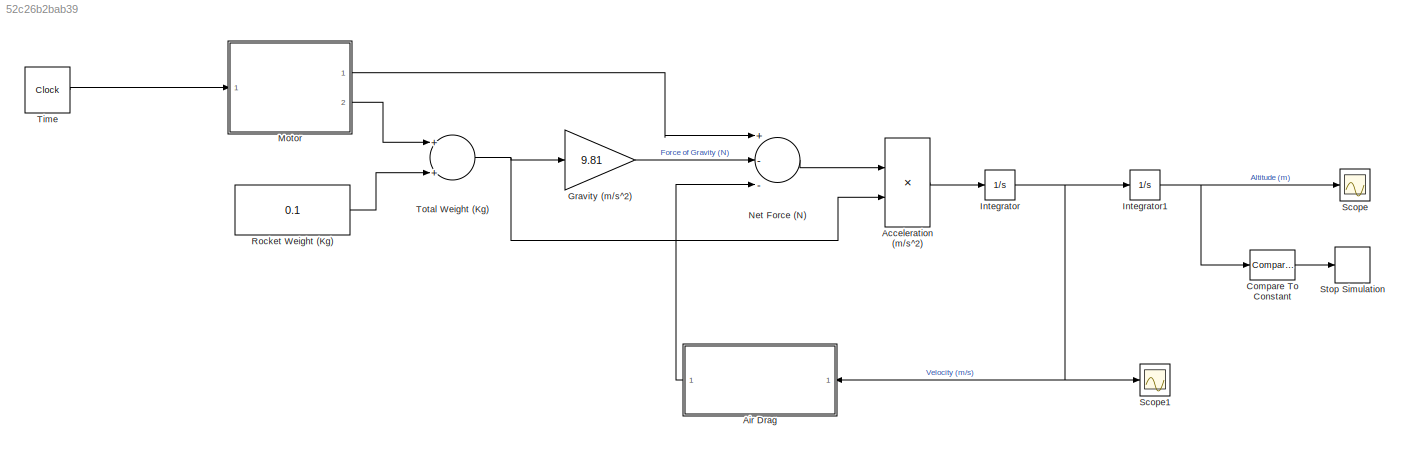
MODEL slx_52c26b2bab39
KIND model
CONFIG AbsTol = auto
CONFIG EnableMultiTasking = off
CONFIG FixedStep = auto
CONFIG MaxStep = auto
CONFIG MinStep = auto
CONFIG RelTol = 1e-3
CONFIG SampleTimeConstraint = Unconstrained
CONFIG Solver = VariableStepAuto
CONFIG SolverName = VariableStepAuto
CONFIG StartTime = 0.0
CONFIG StopTime = 20
BLOCK [Product] Acceleration (m//s^2)
  InputSameDT = off
  Inputs = */
  OutDataTypeStr = Inherit: Inherit via internal rule
  Ports = [2, 1]
  RndMeth = Floor
  SaturateOnIntegerOverflow = off
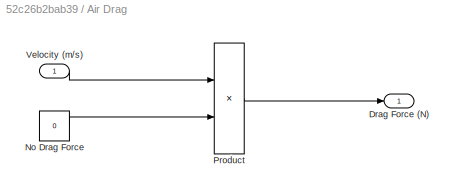
BLOCK [SubSystem] Air Drag
  Ports = [1, 1]
  RequestExecContextInheritance = off
  Variant = off
BLOCK [Outport] Air Drag/Drag Force (N)
  IconDisplay = Port number
BLOCK [Constant] Air Drag/No Drag Force
  Value = 0
BLOCK [Product] Air Drag/Product
  InputSameDT = off
  OutDataTypeStr = Inherit: Inherit via internal rule
  Ports = [2, 1]
  RndMeth = Floor
  SaturateOnIntegerOverflow = off
BLOCK [Inport] Air Drag/Velocity (m//s)
  IconDisplay = Port number
BLOCK [Reference] Compare To Constant  REF=simulink/Logic and Bit
Operations/Compare
To Constant
  Ports = [1, 1]
  SourceBlock = simulink/Logic and Bit\nOperations/Compare\nTo Constant
  SourceProductBaseCode = SL
  SourceProductName = Simulink
  SourceType = Compare To Constant
BLOCK [Gain] Gravity (m//s^2)
  Gain = 9.81
  OutDataTypeStr = Inherit: Inherit via internal rule
  ParamDataTypeStr = Inherit: Inherit via internal rule
  SaturateOnIntegerOverflow = off
BLOCK [Integrator] Integrator
  Ports = [1, 1]
BLOCK [Integrator] Integrator1
  Ports = [1, 1]
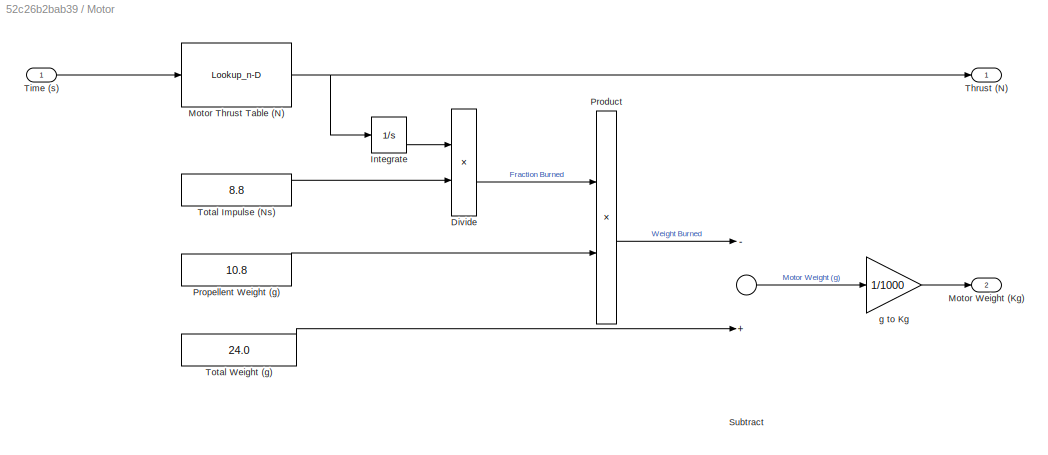
BLOCK [SubSystem] Motor
  Ports = [1, 2]
  RequestExecContextInheritance = off
  Variant = off
BLOCK [Product] Motor/Divide
  InputSameDT = off
  Inputs = */
  OutDataTypeStr = Inherit: Inherit via internal rule
  Ports = [2, 1]
  RndMeth = Floor
  SaturateOnIntegerOverflow = off
BLOCK [Integrator] Motor/Integrate
  Ports = [1, 1]
BLOCK [Lookup_n-D] Motor/Motor Thrust Table (N)
  BreakpointsForDimension1 = [0.0,0.031,0.092,0.139,0.192,0.209,0.231,0.248,0.292,0.37,0.475,0.671,0.702,0.723,0.85,1.063,1.211,1.242,1.303,1.468,1.656,1.821,1.834,1.847,1.86,1.87]
  InternalRulePriority = Speed
  NumberOfTableDimensions = 1
  Ports = [1, 1]
  RndMeth = Simplest
  Table = [0.0,0.946,4.826,9.936,14.09,11.446,7.381,6.151,5.489,4.921,4.448,4.258,4.542,4.164,4.448,4.353,4.353,4.069,4.258,4.353,4.448,4.448,2.933,1.325,0.0,0.0]
BLOCK [Outport] Motor/Motor Weight (Kg)
  IconDisplay = Port number
  Port = 2
BLOCK [Product] Motor/Product
  InputSameDT = off
  OutDataTypeStr = Inherit: Inherit via internal rule
  Ports = [2, 1]
  RndMeth = Floor
  SaturateOnIntegerOverflow = off
BLOCK [Constant] Motor/Propellent Weight (g)
  Value = 10.8
BLOCK [Sum] Motor/Subtract
  InputSameDT = off
  Inputs = -+
  OutDataTypeStr = Inherit: Inherit via internal rule
  Ports = [2, 1]
  SaturateOnIntegerOverflow = off
BLOCK [Outport] Motor/Thrust (N)
  IconDisplay = Port number
BLOCK [Inport] Motor/Time (s)
  IconDisplay = Port number
BLOCK [Constant] Motor/Total Impulse (Ns)
  Value = 8.8
BLOCK [Constant] Motor/Total Weight (g)
  Value = 24.0
BLOCK [Gain] Motor/g to Kg
  Gain = 1/1000
  OutDataTypeStr = Inherit: Inherit via internal rule
  ParamDataTypeStr = Inherit: Inherit via internal rule
  SaturateOnIntegerOverflow = off
BLOCK [Sum] Net Force (N)
  InputSameDT = off
  Inputs = +--
  OutDataTypeStr = Inherit: Inherit via internal rule
  Ports = [3, 1]
  SaturateOnIntegerOverflow = off
BLOCK [Constant] Rocket Weight (Kg)
  Value = 0.1
BLOCK [Scope] Scope
  NumInputPorts = 1
  Ports = [1]
  ScopeSpecificationString = Simulink.scopes.TimeScopeBlockCfg('CurrentConfiguration', extmgr.ConfigurationSet(extmgr.Configuration('Core','General UI',true),extmgr.Configuration('Core','Source UI',true),extmgr.Configuration('Sources','WiredSimulink',true),extmgr.Configuration('Visuals','Time Domain',true,'SerializedDisplays',{struct('MinYLimReal','-27.15318','MaxYLimReal','244.27866','YLabelReal','','MinYLimMag','0.00000','M...<+1372ch>
BLOCK [Scope] Scope1
  NumInputPorts = 1
  Ports = [1]
  ScopeSpecificationString = Simulink.scopes.TimeScopeBlockCfg('CurrentConfiguration', extmgr.ConfigurationSet(extmgr.Configuration('Core','General UI',true),extmgr.Configuration('Core','Source UI',true),extmgr.Configuration('Sources','WiredSimulink',true,'DataLoggingVariableName','ScopeData1'),extmgr.Configuration('Visuals','Time Domain',true,'SerializedDisplays',{struct('MinYLimReal','-80.24661','MaxYLimReal','69.49643','YL...<+1379ch>
BLOCK [Stop] Stop Simulation
BLOCK [Clock] Time
  DisplayTime = on
BLOCK [Sum] Total Weight (Kg)
  InputSameDT = off
  OutDataTypeStr = Inherit: Inherit via internal rule
  Ports = [2, 1]
  SaturateOnIntegerOverflow = off
LINE Acceleration (m//s^2):1 -> Integrator:1
LINE Air Drag/No Drag Force:1 -> Air Drag/Product:2
LINE Air Drag/Product:1 -> Air Drag/Drag Force (N):1
LINE Air Drag/Velocity (m//s):1 -> Air Drag/Product:1
LINE Air Drag:1 -> Net Force (N):3
LINE Compare To Constant:1 -> Stop Simulation:1
LINE Gravity (m//s^2):1 -> Net Force (N):2
NET Integrator1:1 -> Compare To Constant:1, Scope:1
NET Integrator:1 -> Air Drag:1, Integrator1:1, Scope1:1
LINE Motor/Divide:1 -> Motor/Product:1
LINE Motor/Integrate:1 -> Motor/Divide:1
NET Motor/Motor Thrust Table (N):1 -> Motor/Integrate:1, Motor/Thrust (N):1
LINE Motor/Product:1 -> Motor/Subtract:1
LINE Motor/Propellent Weight (g):1 -> Motor/Product:2
LINE Motor/Subtract:1 -> Motor/g to Kg:1
LINE Motor/Time (s):1 -> Motor/Motor Thrust Table (N):1
LINE Motor/Total Impulse (Ns):1 -> Motor/Divide:2
LINE Motor/Total Weight (g):1 -> Motor/Subtract:2
LINE Motor/g to Kg:1 -> Motor/Motor Weight (Kg):1
LINE Motor:1 -> Net Force (N):1
LINE Motor:2 -> Total Weight (Kg):1
LINE Net Force (N):1 -> Acceleration (m//s^2):1
LINE Rocket Weight (Kg):1 -> Total Weight (Kg):2
LINE Time:1 -> Motor:1
NET Total Weight (Kg):1 -> Acceleration (m//s^2):2, Gravity (m//s^2):1
note: NET lines group one-source signal fan-out (src -> all destinations, sorted); 1:1 wires keep LINE
